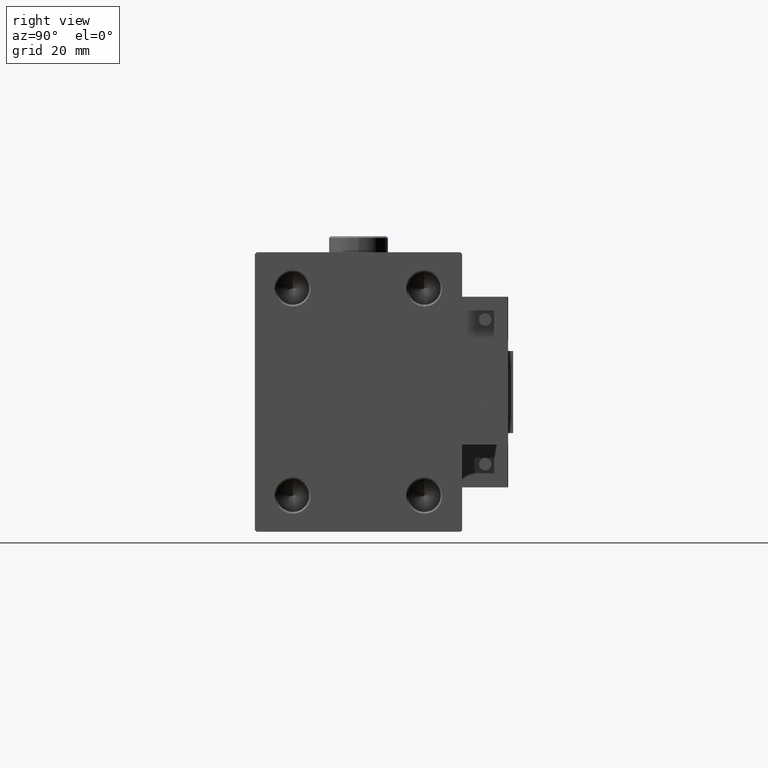
[diagram: clean part render]
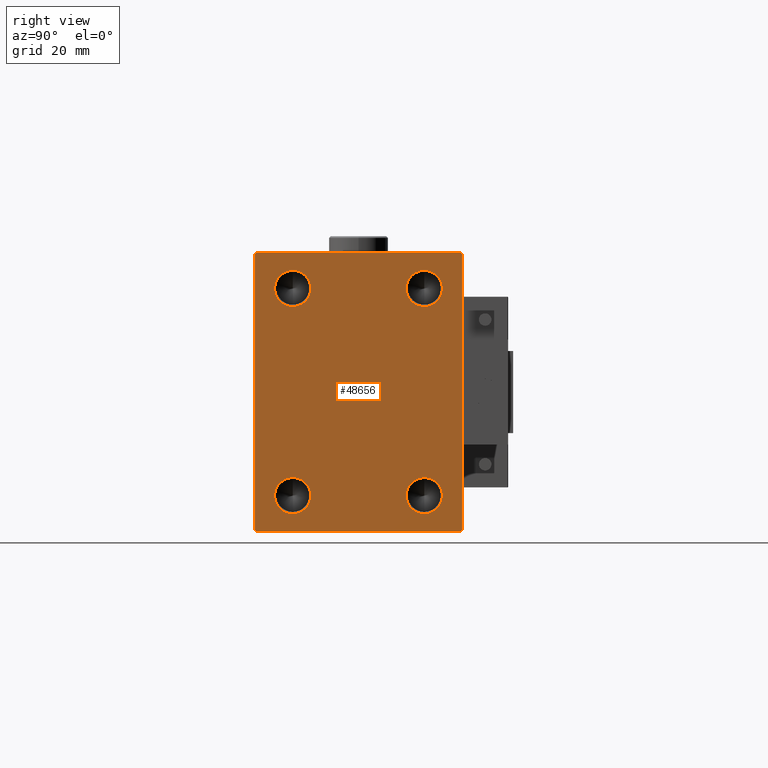
[diagram: same view with one face highlighted and labeled with its STEP entity id]
A machine part, right view. The second image highlights one B-rep face of the part: STEP entity #48656.
In plain terms, the highlighted planar face has unit normal (1, 0, 0).
Its self-contained STEP definition (entity closure, byte-faithful):
#479 = DIRECTION ( 'NONE',  ( 0.000000000000000000, 0.000000000000000000, -1.000000000000000000 ) ) ;
#581 = VECTOR ( 'NONE', #40589, 1000.000000000000000 ) ;
#1060 = EDGE_LOOP ( 'NONE', ( #1515, #25874, #16541, #40789, #50403, #8496, #28080, #48858 ) ) ;
#1235 = EDGE_CURVE ( 'NONE', #52575, #51468, #1586, .T. ) ;
#1459 = CIRCLE ( 'NONE', #30311, 5.499999999999963585 ) ;
#1487 = EDGE_CURVE ( 'NONE', #28883, #26806, #49777, .T. ) ;
#1515 = ORIENTED_EDGE ( 'NONE', *, *, #2472, .T. ) ;
#1586 = CIRCLE ( 'NONE', #22780, 5.499999999999963585 ) ;
#1865 = AXIS2_PLACEMENT_3D ( 'NONE', #32245, #36495, #48464 ) ;
#2472 = EDGE_CURVE ( 'NONE', #22634, #49507, #25123, .T. ) ;
#2593 = AXIS2_PLACEMENT_3D ( 'NONE', #18500, #29962, #25966 ) ;
#2625 = CARTESIAN_POINT ( 'NONE',  ( 113.0000000000000000, -20.00000000000000355, 36.99999999999996447 ) ) ;
#2742 = EDGE_CURVE ( 'NONE', #19344, #37655, #26242, .T. ) ;
#2985 = AXIS2_PLACEMENT_3D ( 'NONE', #11362, #8423, #29654 ) ;
#3107 = FACE_OUTER_BOUND ( 'NONE', #1060, .T. ) ;
#3825 = DIRECTION ( 'NONE',  ( 0.000000000000000000, 0.000000000000000000, -1.000000000000000000 ) ) ;
#4207 = VECTOR ( 'NONE', #21666, 1000.000000000000000 ) ;
#4393 = ORIENTED_EDGE ( 'NONE', *, *, #8375, .F. ) ;
#4567 = CARTESIAN_POINT ( 'NONE',  ( 113.0000000000000000, -20.00000000000000355, -26.00000000000003197 ) ) ;
#4730 = CARTESIAN_POINT ( 'NONE',  ( 113.0000000000000000, -20.00000000000000355, 31.50000000000000000 ) ) ;
#5719 = CARTESIAN_POINT ( 'NONE',  ( 113.0000000000000000, 31.50000000000000000, 42.49999999999999289 ) ) ;
#5939 = CARTESIAN_POINT ( 'NONE',  ( 113.0000000000000000, 31.00000000000004263, -42.50000000000000711 ) ) ;
#6013 = CIRCLE ( 'NONE', #2593, 5.499999999999963585 ) ;
#6015 = EDGE_CURVE ( 'NONE', #37655, #19344, #6013, .T. ) ;
#6036 = DIRECTION ( 'NONE',  ( 1.000000000000000000, -0.000000000000000000, -0.000000000000000000 ) ) ;
#6248 = CARTESIAN_POINT ( 'NONE',  ( 113.0000000000000000, 31.50000000000001421, -42.00000000000003553 ) ) ;
#6601 = EDGE_LOOP ( 'NONE', ( #21518, #27937 ) ) ;
#7093 = FACE_BOUND ( 'NONE', #6601, .T. ) ;
#8020 = LINE ( 'NONE', #40170, #19015 ) ;
#8034 = EDGE_LOOP ( 'NONE', ( #4393, #18443 ) ) ;
#8375 = EDGE_CURVE ( 'NONE', #32306, #44760, #50224, .T. ) ;
#8423 = DIRECTION ( 'NONE',  ( 1.000000000000000000, 0.000000000000000000, 0.000000000000000000 ) ) ;
#8496 = ORIENTED_EDGE ( 'NONE', *, *, #26139, .T. ) ;
#8856 = DIRECTION ( 'NONE',  ( -0.000000000000000000, 0.7071067811865426878, -0.7071067811865524577 ) ) ;
#9763 = DIRECTION ( 'NONE',  ( 0.000000000000000000, 0.000000000000000000, -1.000000000000000000 ) ) ;
#10261 = VERTEX_POINT ( 'NONE', #5939 ) ;
#10700 = CARTESIAN_POINT ( 'NONE',  ( 113.0000000000000000, 19.99999999999999645, -36.99999999999996447 ) ) ;
#10807 = DIRECTION ( 'NONE',  ( 1.000000000000000000, -0.000000000000000000, -0.000000000000000000 ) ) ;
#11362 = CARTESIAN_POINT ( 'NONE',  ( 113.0000000000000000, 0.000000000000000000, 0.000000000000000000 ) ) ;
#11514 = CARTESIAN_POINT ( 'NONE',  ( 113.0000000000000000, -20.00000000000000355, 26.00000000000003197 ) ) ;
#12374 = VERTEX_POINT ( 'NONE', #49206 ) ;
#12628 = VECTOR ( 'NONE', #8856, 1000.000000000000000 ) ;
#13367 = CARTESIAN_POINT ( 'NONE',  ( 113.0000000000000000, -36.75000000000023448, -36.74999999999972999 ) ) ;
#13844 = DIRECTION ( 'NONE',  ( -0.000000000000000000, 0.7071067811865474617, 0.7071067811865474617 ) ) ;
#15354 = CIRCLE ( 'NONE', #22972, 5.499999999999963585 ) ;
#15550 = DIRECTION ( 'NONE',  ( 1.000000000000000000, -0.000000000000000000, -0.000000000000000000 ) ) ;
#16151 = CARTESIAN_POINT ( 'NONE',  ( 113.0000000000000000, -20.00000000000000355, -36.99999999999996447 ) ) ;
#16541 = ORIENTED_EDGE ( 'NONE', *, *, #27520, .T. ) ;
#17460 = DIRECTION ( 'NONE',  ( 1.000000000000000000, -0.000000000000000000, -0.000000000000000000 ) ) ;
#17738 = CARTESIAN_POINT ( 'NONE',  ( 113.0000000000000000, -20.00000000000000355, 31.50000000000000000 ) ) ;
#17918 = CARTESIAN_POINT ( 'NONE',  ( 113.0000000000000000, -31.50000000000000000, -42.00000000000002842 ) ) ;
#18331 = CARTESIAN_POINT ( 'NONE',  ( 113.0000000000000000, 36.75000000000002842, -36.75000000000002842 ) ) ;
#18393 = EDGE_CURVE ( 'NONE', #49507, #25921, #8020, .T. ) ;
#18443 = ORIENTED_EDGE ( 'NONE', *, *, #35374, .F. ) ;
#18500 = CARTESIAN_POINT ( 'NONE',  ( 113.0000000000000000, 19.99999999999999645, -31.50000000000000000 ) ) ;
#18764 = CARTESIAN_POINT ( 'NONE',  ( 113.0000000000000000, 19.99999999999999645, 36.99999999999996447 ) ) ;
#19015 = VECTOR ( 'NONE', #24735, 1000.000000000000114 ) ;
#19028 = CARTESIAN_POINT ( 'NONE',  ( 113.0000000000000000, 19.99999999999999645, 31.50000000000000000 ) ) ;
#19344 = VERTEX_POINT ( 'NONE', #10700 ) ;
#19997 = CARTESIAN_POINT ( 'NONE',  ( 113.0000000000000000, 19.99999999999999645, 26.00000000000003197 ) ) ;
#20061 = LINE ( 'NONE', #36289, #21067 ) ;
#20087 = VERTEX_POINT ( 'NONE', #6248 ) ;
#20189 = VECTOR ( 'NONE', #13844, 1000.000000000000114 ) ;
#20236 = LINE ( 'NONE', #36723, #52202 ) ;
#20639 = CARTESIAN_POINT ( 'NONE',  ( 113.0000000000000000, -31.00000000000002842, 42.49999999999998579 ) ) ;
#21067 = VECTOR ( 'NONE', #28314, 1000.000000000000114 ) ;
#21518 = ORIENTED_EDGE ( 'NONE', *, *, #38214, .F. ) ;
#21666 = DIRECTION ( 'NONE',  ( 0.000000000000000000, -1.000000000000000000, -1.101411730778925171E-16 ) ) ;
#22226 = AXIS2_PLACEMENT_3D ( 'NONE', #19028, #10807, #34993 ) ;
#22634 = VERTEX_POINT ( 'NONE', #45696 ) ;
#22780 = AXIS2_PLACEMENT_3D ( 'NONE', #17738, #6036, #50166 ) ;
#22972 = AXIS2_PLACEMENT_3D ( 'NONE', #40807, #41325, #44817 ) ;
#23308 = FACE_BOUND ( 'NONE', #38355, .T. ) ;
#24379 = LINE ( 'NONE', #39813, #581 ) ;
#24406 = EDGE_CURVE ( 'NONE', #51468, #52575, #1459, .T. ) ;
#24549 = VERTEX_POINT ( 'NONE', #18764 ) ;
#24735 = DIRECTION ( 'NONE',  ( 0.000000000000000000, -0.7071067811865474617, -0.7071067811865474617 ) ) ;
#24765 = CIRCLE ( 'NONE', #1865, 5.499999999999963585 ) ;
#24820 = EDGE_LOOP ( 'NONE', ( #35576, #36224 ) ) ;
#25123 = LINE ( 'NONE', #5719, #4207 ) ;
#25787 = LINE ( 'NONE', #18331, #20189 ) ;
#25874 = ORIENTED_EDGE ( 'NONE', *, *, #18393, .T. ) ;
#25921 = VERTEX_POINT ( 'NONE', #35928 ) ;
#25966 = DIRECTION ( 'NONE',  ( 0.000000000000000000, 0.000000000000000000, -1.000000000000000000 ) ) ;
#26139 = EDGE_CURVE ( 'NONE', #10261, #20087, #25787, .T. ) ;
#26242 = CIRCLE ( 'NONE', #34740, 5.499999999999963585 ) ;
#26806 = VERTEX_POINT ( 'NONE', #40779 ) ;
#26815 = LINE ( 'NONE', #47546, #43820 ) ;
#27520 = EDGE_CURVE ( 'NONE', #25921, #28883, #24379, .T. ) ;
#27818 = EDGE_CURVE ( 'NONE', #12374, #22634, #20061, .T. ) ;
#27937 = ORIENTED_EDGE ( 'NONE', *, *, #37597, .F. ) ;
#28080 = ORIENTED_EDGE ( 'NONE', *, *, #51488, .T. ) ;
#28314 = DIRECTION ( 'NONE',  ( -0.000000000000000000, -0.7071067811865474617, 0.7071067811865474617 ) ) ;
#28883 = VERTEX_POINT ( 'NONE', #17918 ) ;
#29654 = DIRECTION ( 'NONE',  ( 0.000000000000000000, 0.000000000000000000, -1.000000000000000000 ) ) ;
#29962 = DIRECTION ( 'NONE',  ( 1.000000000000000000, -0.000000000000000000, -0.000000000000000000 ) ) ;
#30311 = AXIS2_PLACEMENT_3D ( 'NONE', #4730, #33426, #479 ) ;
#31550 = FACE_BOUND ( 'NONE', #24820, .T. ) ;
#32245 = CARTESIAN_POINT ( 'NONE',  ( 113.0000000000000000, 19.99999999999999645, 31.50000000000000000 ) ) ;
#32306 = VERTEX_POINT ( 'NONE', #4567 ) ;
#32997 = DIRECTION ( 'NONE',  ( 0.000000000000000000, 1.000000000000000000, 0.000000000000000000 ) ) ;
#33219 = AXIS2_PLACEMENT_3D ( 'NONE', #41642, #17460, #9763 ) ;
#33426 = DIRECTION ( 'NONE',  ( 1.000000000000000000, -0.000000000000000000, -0.000000000000000000 ) ) ;
#34740 = AXIS2_PLACEMENT_3D ( 'NONE', #40235, #15550, #3825 ) ;
#34993 = DIRECTION ( 'NONE',  ( 0.000000000000000000, 0.000000000000000000, -1.000000000000000000 ) ) ;
#35374 = EDGE_CURVE ( 'NONE', #44760, #32306, #15354, .T. ) ;
#35576 = ORIENTED_EDGE ( 'NONE', *, *, #6015, .F. ) ;
#35778 = ORIENTED_EDGE ( 'NONE', *, *, #24406, .F. ) ;
#35928 = CARTESIAN_POINT ( 'NONE',  ( 113.0000000000000000, -31.50000000000000000, 42.00000000000001421 ) ) ;
#36224 = ORIENTED_EDGE ( 'NONE', *, *, #2742, .F. ) ;
#36289 = CARTESIAN_POINT ( 'NONE',  ( 113.0000000000000000, 36.75000000000001421, 36.75000000000001421 ) ) ;
#36483 = VERTEX_POINT ( 'NONE', #19997 ) ;
#36495 = DIRECTION ( 'NONE',  ( 1.000000000000000000, -0.000000000000000000, -0.000000000000000000 ) ) ;
#36723 = CARTESIAN_POINT ( 'NONE',  ( 113.0000000000000000, -31.50000000000000000, -42.50000000000000711 ) ) ;
#37597 = EDGE_CURVE ( 'NONE', #36483, #24549, #24765, .T. ) ;
#37655 = VERTEX_POINT ( 'NONE', #50815 ) ;
#38214 = EDGE_CURVE ( 'NONE', #24549, #36483, #38362, .T. ) ;
#38355 = EDGE_LOOP ( 'NONE', ( #35778, #41852 ) ) ;
#38362 = CIRCLE ( 'NONE', #22226, 5.499999999999963585 ) ;
#39526 = FACE_BOUND ( 'NONE', #8034, .T. ) ;
#39813 = CARTESIAN_POINT ( 'NONE',  ( 113.0000000000000000, -31.50000000000000000, 42.49999999999998579 ) ) ;
#40170 = CARTESIAN_POINT ( 'NONE',  ( 113.0000000000000000, -36.75000000000001421, 36.75000000000001421 ) ) ;
#40235 = CARTESIAN_POINT ( 'NONE',  ( 113.0000000000000000, 19.99999999999999645, -31.50000000000000000 ) ) ;
#40589 = DIRECTION ( 'NONE',  ( 0.000000000000000000, 0.000000000000000000, -1.000000000000000000 ) ) ;
#40779 = CARTESIAN_POINT ( 'NONE',  ( 113.0000000000000000, -31.00000000000002842, -42.50000000000000711 ) ) ;
#40789 = ORIENTED_EDGE ( 'NONE', *, *, #1487, .T. ) ;
#40807 = CARTESIAN_POINT ( 'NONE',  ( 113.0000000000000000, -20.00000000000000355, -31.50000000000000000 ) ) ;
#41325 = DIRECTION ( 'NONE',  ( 1.000000000000000000, -0.000000000000000000, -0.000000000000000000 ) ) ;
#41642 = CARTESIAN_POINT ( 'NONE',  ( 113.0000000000000000, -20.00000000000000355, -31.50000000000000000 ) ) ;
#41852 = ORIENTED_EDGE ( 'NONE', *, *, #1235, .F. ) ;
#43820 = VECTOR ( 'NONE', #50485, 1000.000000000000000 ) ;
#44760 = VERTEX_POINT ( 'NONE', #16151 ) ;
#44817 = DIRECTION ( 'NONE',  ( 0.000000000000000000, 0.000000000000000000, -1.000000000000000000 ) ) ;
#45696 = CARTESIAN_POINT ( 'NONE',  ( 113.0000000000000000, 31.00000000000002842, 42.49999999999999289 ) ) ;
#47546 = CARTESIAN_POINT ( 'NONE',  ( 113.0000000000000000, 31.50000000000001421, -42.50000000000000711 ) ) ;
#48464 = DIRECTION ( 'NONE',  ( 0.000000000000000000, 0.000000000000000000, -1.000000000000000000 ) ) ;
#48656 = ADVANCED_FACE ( 'NONE', ( #7093, #23308, #39526, #31550, #3107 ), #51741, .T. ) ;
#48858 = ORIENTED_EDGE ( 'NONE', *, *, #27818, .T. ) ;
#49206 = CARTESIAN_POINT ( 'NONE',  ( 113.0000000000000000, 31.50000000000000000, 42.00000000000002132 ) ) ;
#49245 = EDGE_CURVE ( 'NONE', #26806, #10261, #20236, .T. ) ;
#49507 = VERTEX_POINT ( 'NONE', #20639 ) ;
#49777 = LINE ( 'NONE', #13367, #12628 ) ;
#50166 = DIRECTION ( 'NONE',  ( 0.000000000000000000, 0.000000000000000000, -1.000000000000000000 ) ) ;
#50224 = CIRCLE ( 'NONE', #33219, 5.499999999999963585 ) ;
#50403 = ORIENTED_EDGE ( 'NONE', *, *, #49245, .T. ) ;
#50485 = DIRECTION ( 'NONE',  ( 0.000000000000000000, -1.632680918566406547E-16, 1.000000000000000000 ) ) ;
#50815 = CARTESIAN_POINT ( 'NONE',  ( 113.0000000000000000, 19.99999999999999645, -26.00000000000003197 ) ) ;
#51468 = VERTEX_POINT ( 'NONE', #2625 ) ;
#51488 = EDGE_CURVE ( 'NONE', #20087, #12374, #26815, .T. ) ;
#51741 = PLANE ( 'NONE',  #2985 ) ;
#52202 = VECTOR ( 'NONE', #32997, 1000.000000000000000 ) ;
#52575 = VERTEX_POINT ( 'NONE', #11514 ) ;